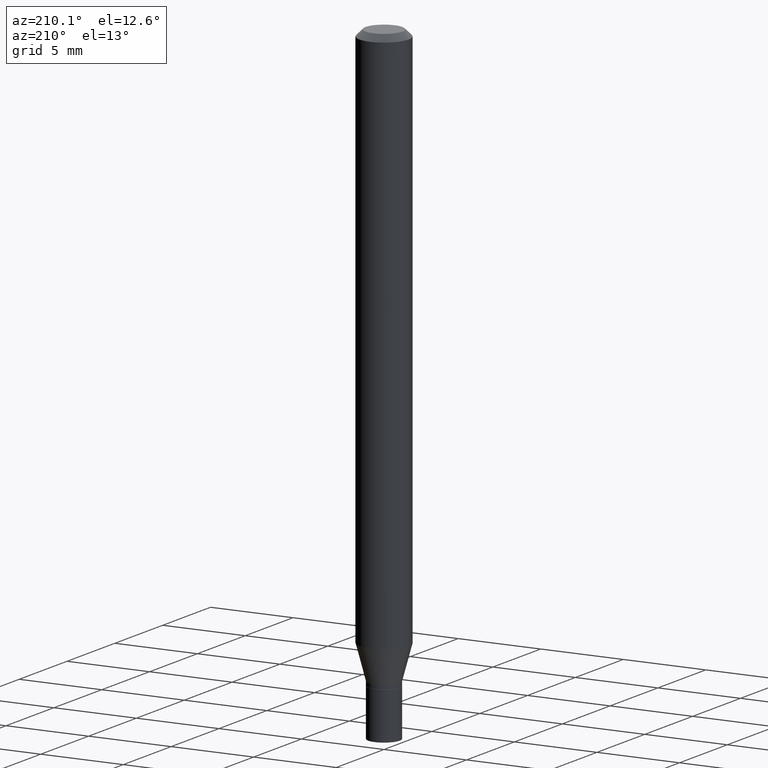
[diagram: clean part render]
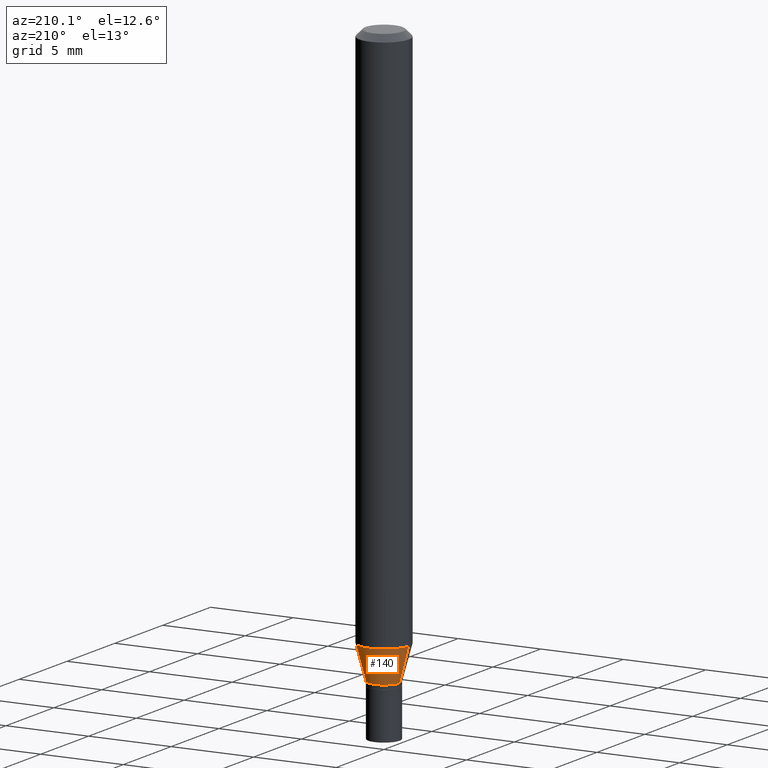
[diagram: same view with one face highlighted and labeled with its STEP entity id]
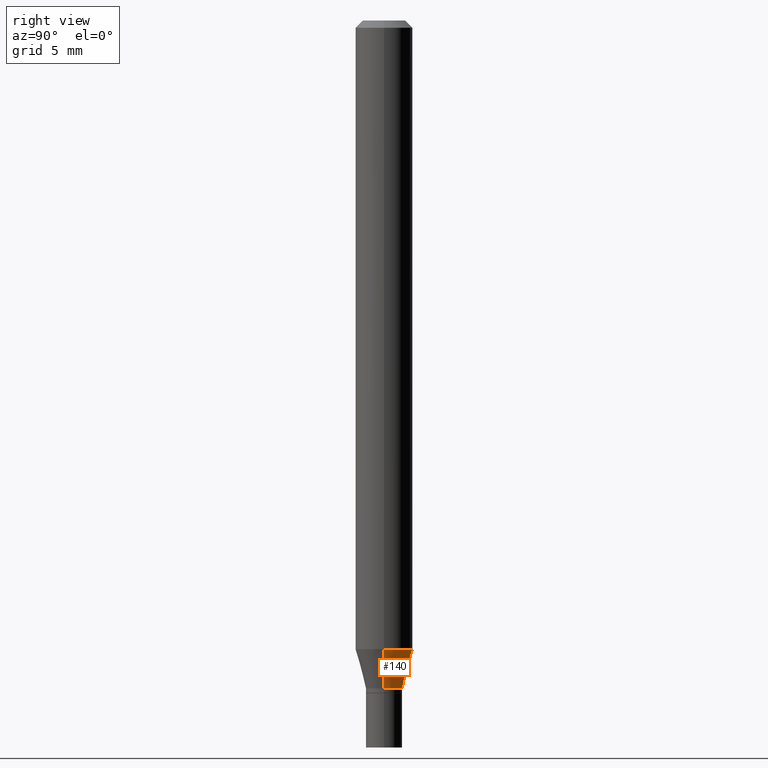
[diagram: same view with one face highlighted and labeled with its STEP entity id]
A machine part, auxiliary view. The second image highlights one B-rep face of the part: STEP entity #140.
A second angle (right view) of the same face is appended — the face is thin or edge-on in the first view.
In plain terms, the highlighted conical surface has half-angle 15 deg.
Its self-contained STEP definition (entity closure, byte-faithful):
#21 = CIRCLE ( 'NONE', #398, 0.03739999999999964186 ) ;
#33 = DIRECTION ( 'NONE',  ( -2.445468806185136597E-29, 3.491481338843145583E-15, 1.000000000000000000 ) ) ;
#34 = EDGE_CURVE ( 'NONE', #289, #409, #54, .T. ) ;
#54 = LINE ( 'NONE', #425, #292 ) ;
#109 = ORIENTED_EDGE ( 'NONE', *, *, #288, .F. ) ;
#124 = DIRECTION ( 'NONE',  ( -2.445468806185136597E-29, 3.491481338843145583E-15, 1.000000000000000000 ) ) ;
#133 = CARTESIAN_POINT ( 'NONE',  ( 0.03739999999999964186, -5.072424089071318773E-15, -1.378000000000000114 ) ) ;
#134 = AXIS2_PLACEMENT_3D ( 'NONE', #172, #33, #168 ) ;
#140 = ADVANCED_FACE ( 'NONE', ( #252 ), #165, .T. ) ;
#163 = CARTESIAN_POINT ( 'NONE',  ( 0.05904999999999999832, -4.941497379550503120E-15, -1.297201100016132980 ) ) ;
#165 = CONICAL_SURFACE ( 'NONE', #416, 0.03739999999999964186, 0.2617993877991505736 ) ;
#168 = DIRECTION ( 'NONE',  ( 1.000000000000000000, -6.982962677686273021E-15, 0.000000000000000000 ) ) ;
#172 = CARTESIAN_POINT ( 'NONE',  ( 3.172264825438498801E-29, -4.529153433433129778E-15, -1.297201100016132980 ) ) ;
#183 = VECTOR ( 'NONE', #248, 39.37007874015748143 ) ;
#186 = ORIENTED_EDGE ( 'NONE', *, *, #347, .T. ) ;
#194 = CARTESIAN_POINT ( 'NONE',  ( 3.369856014923118508E-29, -4.811261284925855529E-15, -1.378000000000000114 ) ) ;
#218 = DIRECTION ( 'NONE',  ( 1.000000000000000000, -6.982962677686264344E-15, 0.000000000000000000 ) ) ;
#230 = VERTEX_POINT ( 'NONE', #422 ) ;
#231 = EDGE_CURVE ( 'NONE', #230, #400, #348, .T. ) ;
#248 = DIRECTION ( 'NONE',  ( 0.2588190451025218497, 1.565188264969618221E-15, 0.9659258262890679791 ) ) ;
#252 = FACE_OUTER_BOUND ( 'NONE', #450, .T. ) ;
#274 = DIRECTION ( 'NONE',  ( 1.000000000000000000, -6.982962677686264344E-15, 0.000000000000000000 ) ) ;
#275 = DIRECTION ( 'NONE',  ( -0.2588190451025218497, 5.211531920934553408E-15, 0.9659258262890679791 ) ) ;
#288 = EDGE_CURVE ( 'NONE', #400, #409, #434, .T. ) ;
#289 = VERTEX_POINT ( 'NONE', #311 ) ;
#292 = VECTOR ( 'NONE', #275, 39.37007874015748143 ) ;
#311 = CARTESIAN_POINT ( 'NONE',  ( -0.03739999999999964186, -4.327548124859185395E-15, -1.378000000000000114 ) ) ;
#339 = ORIENTED_EDGE ( 'NONE', *, *, #34, .T. ) ;
#347 = EDGE_CURVE ( 'NONE', #230, #289, #21, .T. ) ;
#348 = LINE ( 'NONE', #133, #183 ) ;
#386 = CARTESIAN_POINT ( 'NONE',  ( -0.05904999999999999832, -4.109577947966790285E-15, -1.297201100016132980 ) ) ;
#394 = DIRECTION ( 'NONE',  ( -2.445468806185136597E-29, 3.491481338843145583E-15, 1.000000000000000000 ) ) ;
#398 = AXIS2_PLACEMENT_3D ( 'NONE', #456, #124, #274 ) ;
#400 = VERTEX_POINT ( 'NONE', #163 ) ;
#409 = VERTEX_POINT ( 'NONE', #386 ) ;
#413 = ORIENTED_EDGE ( 'NONE', *, *, #231, .F. ) ;
#416 = AXIS2_PLACEMENT_3D ( 'NONE', #194, #394, #218 ) ;
#422 = CARTESIAN_POINT ( 'NONE',  ( 0.03739999999999964186, -5.072424089071318773E-15, -1.378000000000000114 ) ) ;
#425 = CARTESIAN_POINT ( 'NONE',  ( -0.03739999999999964186, -4.545518301751580505E-15, -1.378000000000000114 ) ) ;
#434 = CIRCLE ( 'NONE', #134, 0.05904999999999999832 ) ;
#450 = EDGE_LOOP ( 'NONE', ( #186, #339, #109, #413 ) ) ;
#456 = CARTESIAN_POINT ( 'NONE',  ( 3.369856014923118508E-29, -4.811261284925855529E-15, -1.378000000000000114 ) ) ;